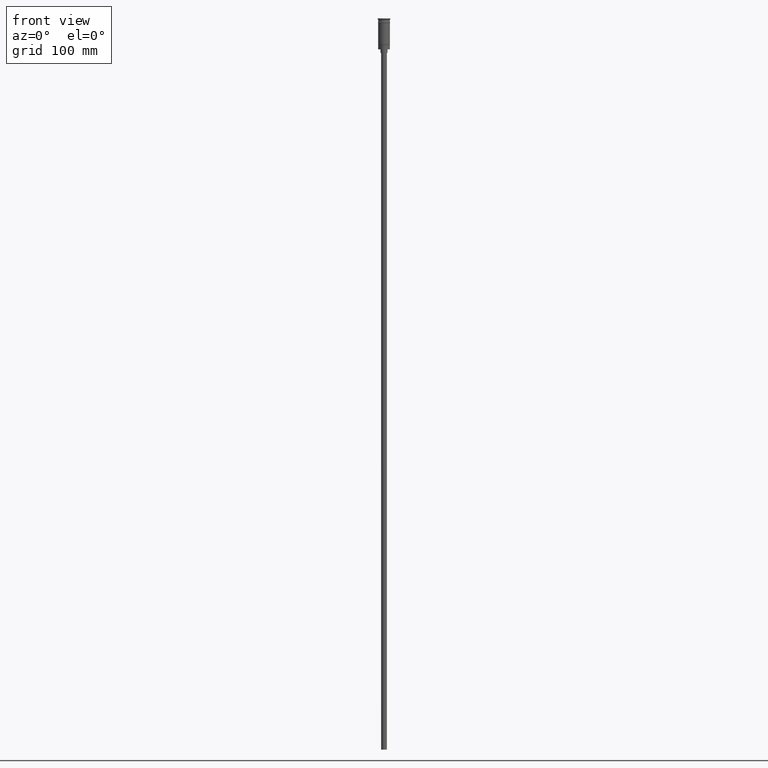
[diagram: clean part render]
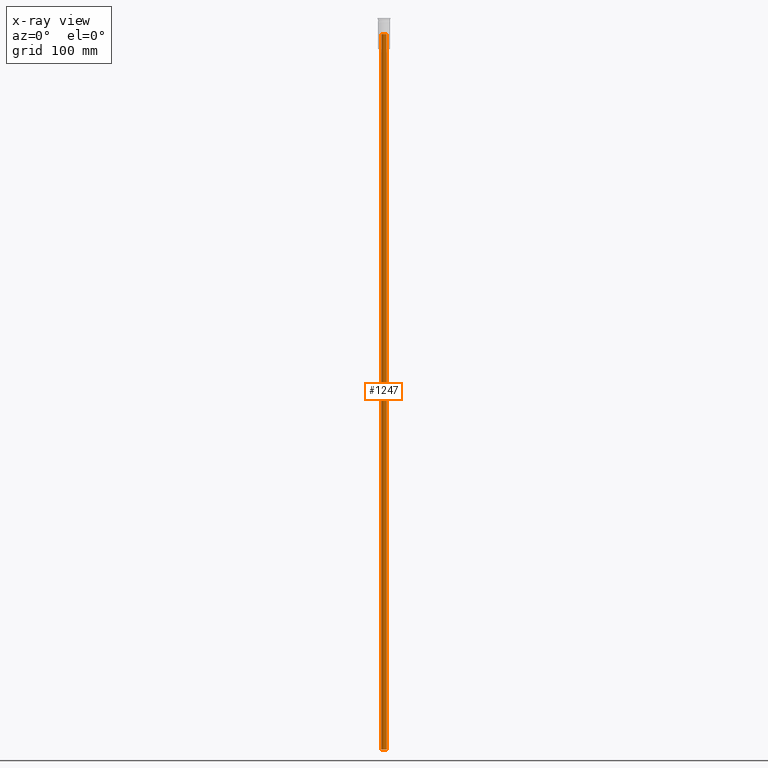
[diagram: x-ray — body ghosted, one internal face saturated and labeled with its STEP entity id]
A machine part, front view, then the same camera in x-ray: the body is ghosted and one INTERNAL B-rep face — a face not visible from any outside direction — is saturated and labeled: STEP entity #1247.
In plain terms, the highlighted cylindrical surface (edge-blend (fillet) strip) has radius 2.25 mm, axis along (-0, -0, -1).
Its self-contained STEP definition (entity closure, byte-faithful):
#33 = DIRECTION ( 'NONE',  ( -0.000000000000000000, -0.000000000000000000, -1.000000000000000000 ) ) ;
#48 = CARTESIAN_POINT ( 'NONE',  ( 2.250000000000000444, 2.755455298081544778E-16, -626.5000000000000000 ) ) ;
#84 = DIRECTION ( 'NONE',  ( -0.000000000000000000, -0.000000000000000000, -1.000000000000000000 ) ) ;
#111 = CARTESIAN_POINT ( 'NONE',  ( -2.250000000000000444, 0.000000000000000000, -13.49999999999999822 ) ) ;
#122 = DIRECTION ( 'NONE',  ( 0.000000000000000000, -1.000000000000000000, 7.709882115452474222E-16 ) ) ;
#123 = EDGE_CURVE ( 'NONE', #1473, #982, #1345, .T. ) ;
#129 = DIRECTION ( 'NONE',  ( -0.000000000000000000, -0.000000000000000000, -1.000000000000000000 ) ) ;
#149 = VERTEX_POINT ( 'NONE', #111 ) ;
#180 = DIRECTION ( 'NONE',  ( -1.000000000000000000, 0.000000000000000000, 0.000000000000000000 ) ) ;
#200 = CARTESIAN_POINT ( 'NONE',  ( -2.250000000000000444, 0.000000000000000000, -626.5000000000000000 ) ) ;
#265 = VECTOR ( 'NONE', #129, 1000.000000000000000 ) ;
#317 = ORIENTED_EDGE ( 'NONE', *, *, #1338, .T. ) ;
#400 = CIRCLE ( 'NONE', #848, 2.250000000000000444 ) ;
#442 = LINE ( 'NONE', #1307, #1530 ) ;
#678 = CIRCLE ( 'NONE', #1503, 2.250000000000000444 ) ;
#723 = ORIENTED_EDGE ( 'NONE', *, *, #123, .T. ) ;
#732 = ORIENTED_EDGE ( 'NONE', *, *, #1027, .F. ) ;
#747 = CARTESIAN_POINT ( 'NONE',  ( 2.250000000000000444, 2.755455298081544778E-16, -7.136038969321023551 ) ) ;
#755 = DIRECTION ( 'NONE',  ( -1.000000000000000000, 0.000000000000000000, 0.000000000000000000 ) ) ;
#791 = CARTESIAN_POINT ( 'NONE',  ( 0.000000000000000000, 0.000000000000000000, -13.49999999999999822 ) ) ;
#848 = AXIS2_PLACEMENT_3D ( 'NONE', #791, #922, #122 ) ;
#922 = DIRECTION ( 'NONE',  ( -0.000000000000000000, -3.942553354492746489E-16, -1.000000000000000000 ) ) ;
#929 = CARTESIAN_POINT ( 'NONE',  ( 0.000000000000000000, 0.000000000000000000, -626.5000000000000000 ) ) ;
#982 = VERTEX_POINT ( 'NONE', #48 ) ;
#1027 = EDGE_CURVE ( 'NONE', #149, #1454, #442, .T. ) ;
#1029 = DIRECTION ( 'NONE',  ( 0.000000000000000000, 0.000000000000000000, -1.000000000000000000 ) ) ;
#1087 = EDGE_CURVE ( 'NONE', #1473, #149, #400, .T. ) ;
#1128 = FACE_OUTER_BOUND ( 'NONE', #1145, .T. ) ;
#1136 = CARTESIAN_POINT ( 'NONE',  ( 0.000000000000000000, 0.000000000000000000, -7.136038969321023551 ) ) ;
#1145 = EDGE_LOOP ( 'NONE', ( #1203, #723, #317, #732 ) ) ;
#1203 = ORIENTED_EDGE ( 'NONE', *, *, #1087, .F. ) ;
#1247 = ADVANCED_FACE ( 'NONE', ( #1128 ), #1372, .F. ) ;
#1307 = CARTESIAN_POINT ( 'NONE',  ( -2.250000000000000444, 0.000000000000000000, -7.136038969321023551 ) ) ;
#1338 = EDGE_CURVE ( 'NONE', #982, #1454, #678, .T. ) ;
#1345 = LINE ( 'NONE', #747, #265 ) ;
#1372 = CYLINDRICAL_SURFACE ( 'NONE', #1501, 2.250000000000000444 ) ;
#1454 = VERTEX_POINT ( 'NONE', #200 ) ;
#1473 = VERTEX_POINT ( 'NONE', #1556 ) ;
#1501 = AXIS2_PLACEMENT_3D ( 'NONE', #1136, #33, #755 ) ;
#1503 = AXIS2_PLACEMENT_3D ( 'NONE', #929, #1029, #180 ) ;
#1530 = VECTOR ( 'NONE', #84, 1000.000000000000000 ) ;
#1556 = CARTESIAN_POINT ( 'NONE',  ( 2.250000000000000444, 2.755455298081544778E-16, -13.49999999999999822 ) ) ;